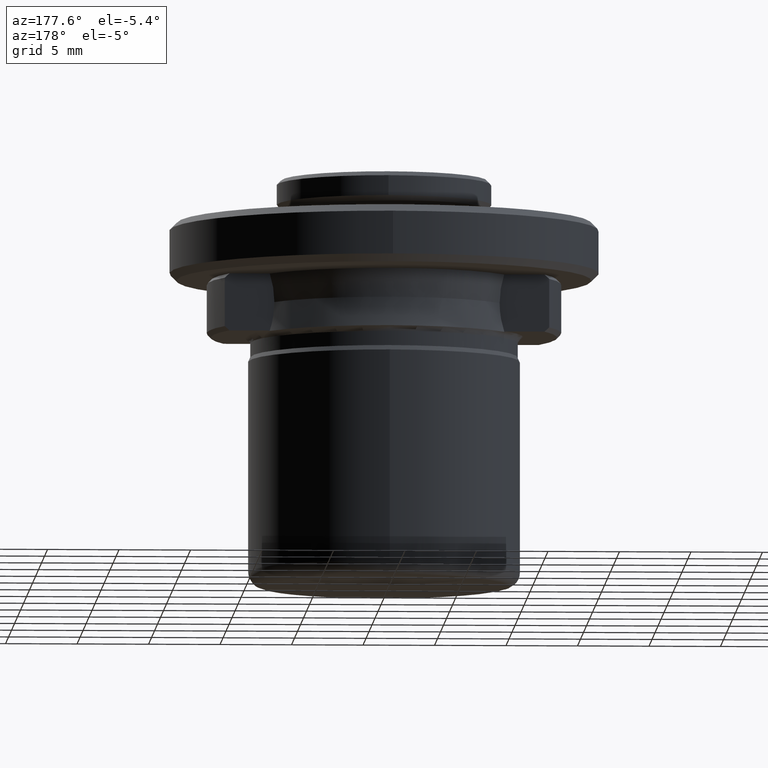
[diagram: clean part render]
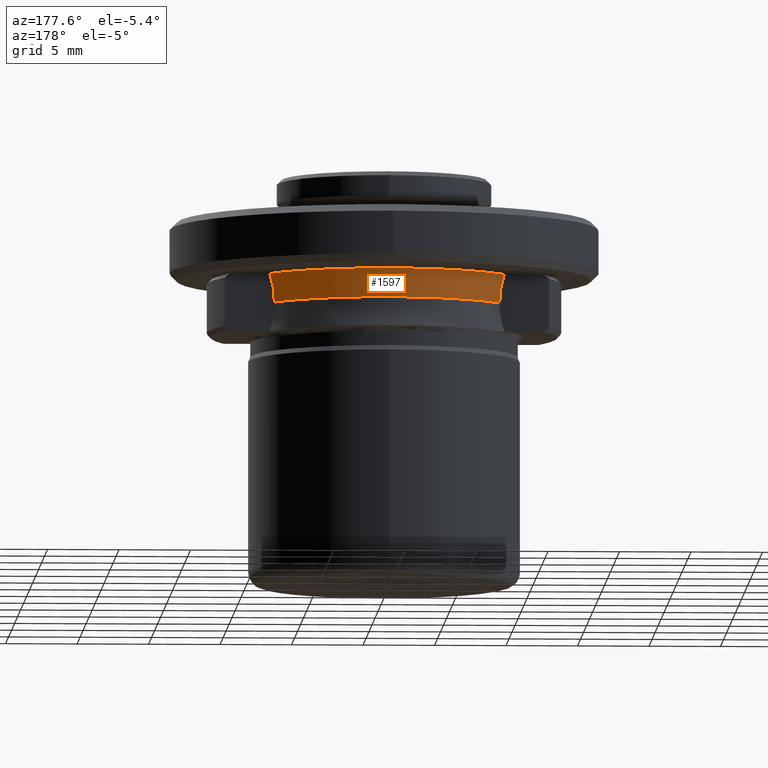
[diagram: same view with one face highlighted and labeled with its STEP entity id]
A machine part, auxiliary view. The second image highlights one B-rep face of the part: STEP entity #1597.
In plain terms, the highlighted face is a freeform B-spline surface patch.
Its self-contained STEP definition (entity closure, byte-faithful):
#3 = CARTESIAN_POINT ( 'NONE',  ( 8.091804077999999100, 4.800549054000000200, 8.356088229000002700 ) ) ;
#16 = FACE_OUTER_BOUND ( 'NONE', #76, .T. ) ;
#76 = EDGE_LOOP ( 'NONE', ( #1585, #1913, #633, #393 ) ) ;
#122 = CARTESIAN_POINT ( 'NONE',  ( -7.877112416672511100, 4.999999997048597300, 6.749999999319589600 ) ) ;
#152 = CARTESIAN_POINT ( 'NONE',  ( 7.987554438062074000, 5.000000000000002700, 8.103832764914706400 ) ) ;
#164 = CARTESIAN_POINT ( 'NONE',  ( 7.877112416672512800, 4.999999997048595500, 6.749999999319589600 ) ) ;
#165 = CARTESIAN_POINT ( 'NONE',  ( -4.004941237999998900, 11.68936385900000000, 8.356088229000002700 ) ) ;
#289 = VERTEX_POINT ( 'NONE', #1151 ) ;
#311 = CARTESIAN_POINT ( 'NONE',  ( 8.460519829000002500, 5.019293605000001400, 9.461645811000002100 ) ) ;
#318 = CARTESIAN_POINT ( 'NONE',  ( -7.877112415001547200, 5.000000000000000000, 7.429352586293858500 ) ) ;
#359 = EDGE_CURVE ( 'NONE', #1256, #1199, #987, .T. ) ;
#393 = ORIENTED_EDGE ( 'NONE', *, *, #417, .T. ) ;
#401 = VERTEX_POINT ( 'NONE', #122 ) ;
#417 = EDGE_CURVE ( 'NONE', #1199, #289, #1540, .T. ) ;
#470 = CARTESIAN_POINT ( 'NONE',  ( 3.987414726000000400, 11.63820860699999700, 6.001249375000002200 ) ) ;
#479 = CARTESIAN_POINT ( 'NONE',  ( -4.187432670999998900, 12.22200806699999900, 9.461645811000002100 ) ) ;
#522 =( BOUNDED_CURVE ( )  B_SPLINE_CURVE ( 3, ( #1964, #844, #1133, #164 ),
 .UNSPECIFIED., .F., .F. ) 
 B_SPLINE_CURVE_WITH_KNOTS ( ( 4, 4 ),
 ( 0.0000000000000000000, 1.000000000000000000 ),
 .UNSPECIFIED. ) 
 CURVE ( )  GEOMETRIC_REPRESENTATION_ITEM ( )  RATIONAL_B_SPLINE_CURVE ( ( 0.9738585525977352400, 0.6725504043378097700, 0.6725504043378099900, 0.9738585525977354600 ) ) 
 REPRESENTATION_ITEM ( '' )  );
#627 = CARTESIAN_POINT ( 'NONE',  ( -7.877112416672511100, 4.999999997048597300, 6.749999999319589600 ) ) ;
#633 = ORIENTED_EDGE ( 'NONE', *, *, #359, .T. ) ;
#636 = CARTESIAN_POINT ( 'NONE',  ( -8.056392546000001400, 4.779540785000001800, 6.001249375000001300 ) ) ;
#691 = CARTESIAN_POINT ( 'NONE',  ( 8.196975814546172900, 5.000000003314001500, 8.750000000509832200 ) ) ;
#697 = CARTESIAN_POINT ( 'NONE',  ( -8.196975812969103700, 5.000000000442648600, 8.750000000509832200 ) ) ;
#803 = CARTESIAN_POINT ( 'NONE',  ( 3.937024453000000300, 11.49113273000000000, 7.181098635999998900 ) ) ;
#805 = CARTESIAN_POINT ( 'NONE',  ( 7.877112416672512800, 4.999999997048595500, 6.749999999319589600 ) ) ;
#844 = CARTESIAN_POINT ( 'NONE',  ( -3.802041327538604200, 11.41995861482380700, 6.749999999011319800 ) ) ;
#971 = CARTESIAN_POINT ( 'NONE',  ( -7.954581259999998500, 4.719140153000001400, 7.181098635999999800 ) ) ;
#974 = CARTESIAN_POINT ( 'NONE',  ( 7.877112415001549000, 5.000000000000003600, 7.429352586418210600 ) ) ;
#987 =( BOUNDED_CURVE ( )  B_SPLINE_CURVE ( 3, ( #2090, #1775, #1137, #1890 ),
 .UNSPECIFIED., .F., .T. ) 
 B_SPLINE_CURVE_WITH_KNOTS ( ( 4, 4 ),
 ( 0.0000000000000000000, 0.01955758531167859200 ),
 .UNSPECIFIED. ) 
 CURVE ( )  GEOMETRIC_REPRESENTATION_ITEM ( )  RATIONAL_B_SPLINE_CURVE ( ( 0.9839124906199209200, 0.6695507562702077700, 0.6695507562702069900, 0.9839124906199190300 ) ) 
 REPRESENTATION_ITEM ( '' )  );
#1133 = CARTESIAN_POINT ( 'NONE',  ( 3.802041327538610900, 11.41995861482380400, 6.749999999011321500 ) ) ;
#1134 = CARTESIAN_POINT ( 'NONE',  ( 4.004941237999998900, 11.68936385900000000, 8.356088229000002700 ) ) ;
#1137 = CARTESIAN_POINT ( 'NONE',  ( 4.015183221453870700, 11.85561054469042100, 8.750000000000001800 ) ) ;
#1151 = CARTESIAN_POINT ( 'NONE',  ( 7.877112416672512800, 4.999999997048595500, 6.749999999319589600 ) ) ;
#1184 = CARTESIAN_POINT ( 'NONE',  ( 8.196975814546172900, 5.000000003314001500, 8.750000000509832200 ) ) ;
#1199 = VERTEX_POINT ( 'NONE', #1184 ) ;
#1256 = VERTEX_POINT ( 'NONE', #697 ) ;
#1294 = B_SPLINE_CURVE_WITH_KNOTS ( 'NONE', 3,
 ( #1643, #1338, #318, #627 ),
 .UNSPECIFIED., .F., .F.,
 ( 4, 4 ),
 ( 5.980985295301940700E-013, 0.002031991267083052600 ),
 .UNSPECIFIED. ) ;
#1296 = CARTESIAN_POINT ( 'NONE',  ( 8.056392546000001400, 4.779540785000001800, 6.001249375000001300 ) ) ;
#1303 = CARTESIAN_POINT ( 'NONE',  ( -8.091804077999999100, 4.800549054000000200, 8.356088229000002700 ) ) ;
#1338 = CARTESIAN_POINT ( 'NONE',  ( -7.987554438100409500, 5.000000000000000000, 8.103832765032985100 ) ) ;
#1456 = CARTESIAN_POINT ( 'NONE',  ( 4.187432670999998900, 12.22200806699999900, 9.461645811000002100 ) ) ;
#1540 = B_SPLINE_CURVE_WITH_KNOTS ( 'NONE', 3,
 ( #691, #152, #974, #805 ),
 .UNSPECIFIED., .F., .F.,
 ( 4, 4 ),
 ( 2.261502033258373100E-013, 0.002031991267083054800 ),
 .UNSPECIFIED. ) ;
#1570 =( BOUNDED_SURFACE ( )  B_SPLINE_SURFACE ( 3, 3, ( 
 ( #1296, #470, #1611, #636 ),
 ( #1773, #803, #1931, #971 ),
 ( #3, #1134, #165, #1303 ),
 ( #311, #1456, #479, #1615 ) ),
 .UNSPECIFIED., .F., .F., .F. ) 
 B_SPLINE_SURFACE_WITH_KNOTS ( ( 4, 4 ),
 ( 4, 4 ),
 ( 0.0000000000000000000, 1.000000000000000000 ),
 ( 0.0000000000000000000, 1.000000000000000000 ),
 .UNSPECIFIED. ) 
 GEOMETRIC_REPRESENTATION_ITEM ( )  RATIONAL_B_SPLINE_SURFACE ( (
 ( 1.000000000000000000, 0.6734850439786470600, 0.6734850439786470600, 1.000000000000000000),
 ( 0.9816814431953340100, 0.6611477699434310500, 0.6611477699434310500, 0.9816814431953340100),
 ( 0.9816814431953340100, 0.6611477699434310500, 0.6611477699434310500, 0.9816814431953340100),
 ( 1.000000000000000000, 0.6734850439786470600, 0.6734850439786470600, 1.000000000000000000) ) ) 
 REPRESENTATION_ITEM ( '' )  SURFACE ( )  );
#1585 = ORIENTED_EDGE ( 'NONE', *, *, #1733, .F. ) ;
#1597 = ADVANCED_FACE ( 'NONE', ( #16 ), #1570, .F. ) ;
#1611 = CARTESIAN_POINT ( 'NONE',  ( -3.987414726000000400, 11.63820860699999700, 6.001249375000002200 ) ) ;
#1615 = CARTESIAN_POINT ( 'NONE',  ( -8.460519829000002500, 5.019293605000001400, 9.461645811000002100 ) ) ;
#1643 = CARTESIAN_POINT ( 'NONE',  ( -8.196975812969103700, 5.000000000442648600, 8.750000000509832200 ) ) ;
#1733 = EDGE_CURVE ( 'NONE', #401, #289, #522, .T. ) ;
#1744 = EDGE_CURVE ( 'NONE', #1256, #401, #1294, .T. ) ;
#1773 = CARTESIAN_POINT ( 'NONE',  ( 7.954581259999998500, 4.719140153000001400, 7.181098635999999800 ) ) ;
#1775 = CARTESIAN_POINT ( 'NONE',  ( -4.015183221453917800, 11.85561054469040200, 8.750000000000001800 ) ) ;
#1890 = CARTESIAN_POINT ( 'NONE',  ( 8.196975814546172900, 5.000000003314001500, 8.750000000509832200 ) ) ;
#1913 = ORIENTED_EDGE ( 'NONE', *, *, #1744, .F. ) ;
#1931 = CARTESIAN_POINT ( 'NONE',  ( -3.937024453000000300, 11.49113273000000000, 7.181098635999998900 ) ) ;
#1964 = CARTESIAN_POINT ( 'NONE',  ( -7.877112416672511100, 4.999999997048597300, 6.749999999319589600 ) ) ;
#2090 = CARTESIAN_POINT ( 'NONE',  ( -8.196975812969103700, 5.000000000442648600, 8.750000000509832200 ) ) ;